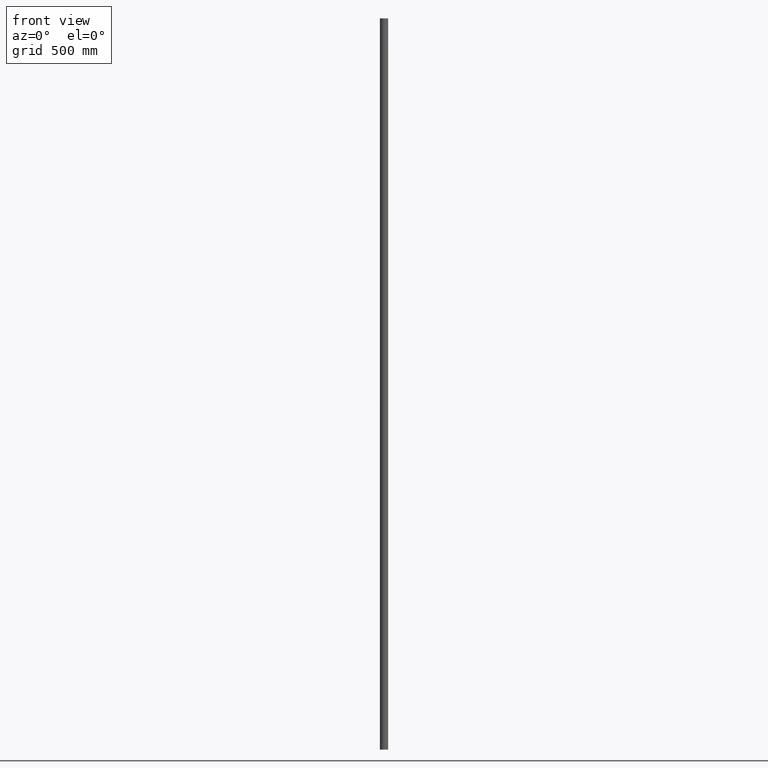
[diagram: clean part render]
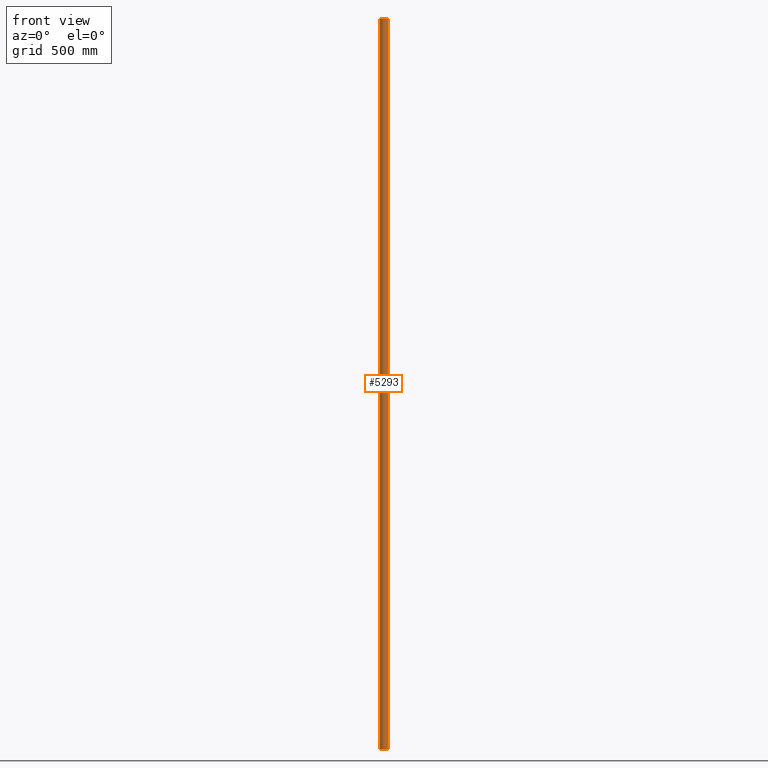
[diagram: same view with one face highlighted and labeled with its STEP entity id]
A machine part, front view. The second image highlights one B-rep face of the part: STEP entity #5293.
In plain terms, the highlighted cylindrical surface (bore or boss wall) has radius 16.85 mm, axis along (-0, -0, -1).
Its self-contained STEP definition (entity closure, byte-faithful):
#212 = EDGE_CURVE ( 'NONE', #11410, #11410, #9224, .T. ) ;
#273 = CYLINDRICAL_SURFACE ( 'NONE', #1468, 16.85000000000000142 ) ;
#646 = CARTESIAN_POINT ( 'NONE',  ( 0.000000000000000000, 0.000000000000000000, 1500.000000000000000 ) ) ;
#1468 = AXIS2_PLACEMENT_3D ( 'NONE', #5973, #12291, #12160 ) ;
#2819 = CARTESIAN_POINT ( 'NONE',  ( 0.000000000000000000, 0.000000000000000000, -1500.000000000000000 ) ) ;
#3365 = AXIS2_PLACEMENT_3D ( 'NONE', #2819, #3925, #3882 ) ;
#3441 = FACE_OUTER_BOUND ( 'NONE', #11472, .T. ) ;
#3649 = AXIS2_PLACEMENT_3D ( 'NONE', #646, #4849, #3895 ) ;
#3882 = DIRECTION ( 'NONE',  ( 1.000000000000000000, 0.000000000000000000, 0.000000000000000000 ) ) ;
#3895 = DIRECTION ( 'NONE',  ( 1.000000000000000000, 0.000000000000000000, 0.000000000000000000 ) ) ;
#3925 = DIRECTION ( 'NONE',  ( 0.000000000000000000, 0.000000000000000000, 1.000000000000000000 ) ) ;
#4339 = ORIENTED_EDGE ( 'NONE', *, *, #11958, .T. ) ;
#4507 = EDGE_LOOP ( 'NONE', ( #4339 ) ) ;
#4742 = CARTESIAN_POINT ( 'NONE',  ( 16.85000000000000142, 0.000000000000000000, -1500.000000000000000 ) ) ;
#4849 = DIRECTION ( 'NONE',  ( 0.000000000000000000, 0.000000000000000000, 1.000000000000000000 ) ) ;
#5293 = ADVANCED_FACE ( 'NONE', ( #3441, #12124 ), #273, .T. ) ;
#5831 = VERTEX_POINT ( 'NONE', #4742 ) ;
#5973 = CARTESIAN_POINT ( 'NONE',  ( 0.000000000000000000, 0.000000000000000000, 1500.000000000000000 ) ) ;
#8142 = ORIENTED_EDGE ( 'NONE', *, *, #212, .F. ) ;
#9224 = CIRCLE ( 'NONE', #3649, 16.85000000000000142 ) ;
#11410 = VERTEX_POINT ( 'NONE', #12170 ) ;
#11472 = EDGE_LOOP ( 'NONE', ( #8142 ) ) ;
#11575 = CIRCLE ( 'NONE', #3365, 16.85000000000000142 ) ;
#11958 = EDGE_CURVE ( 'NONE', #5831, #5831, #11575, .T. ) ;
#12124 = FACE_OUTER_BOUND ( 'NONE', #4507, .T. ) ;
#12160 = DIRECTION ( 'NONE',  ( -1.000000000000000000, 0.000000000000000000, 0.000000000000000000 ) ) ;
#12170 = CARTESIAN_POINT ( 'NONE',  ( 16.85000000000000142, 0.000000000000000000, 1500.000000000000000 ) ) ;
#12291 = DIRECTION ( 'NONE',  ( -0.000000000000000000, -0.000000000000000000, -1.000000000000000000 ) ) ;